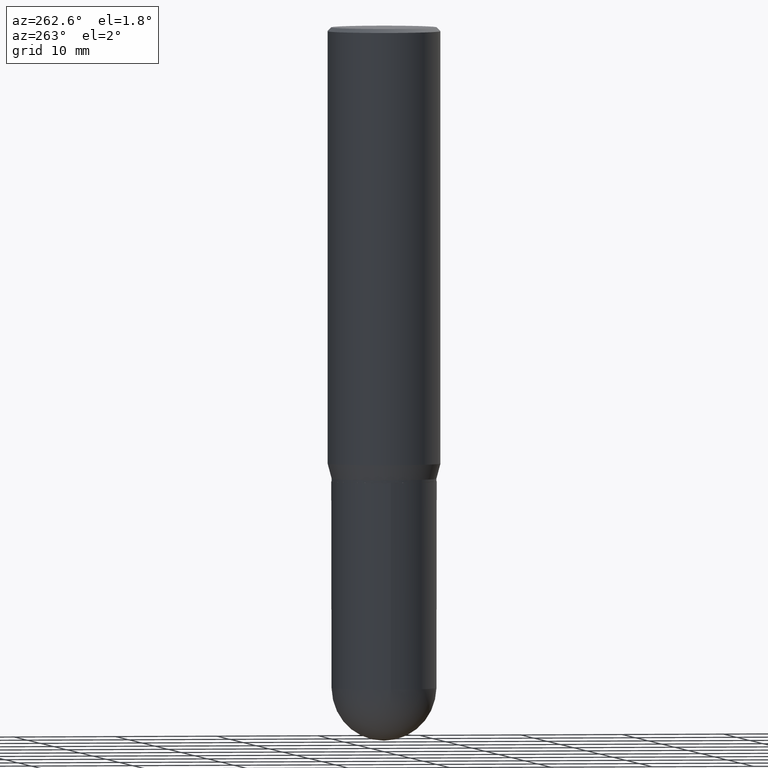
[diagram: clean part render]
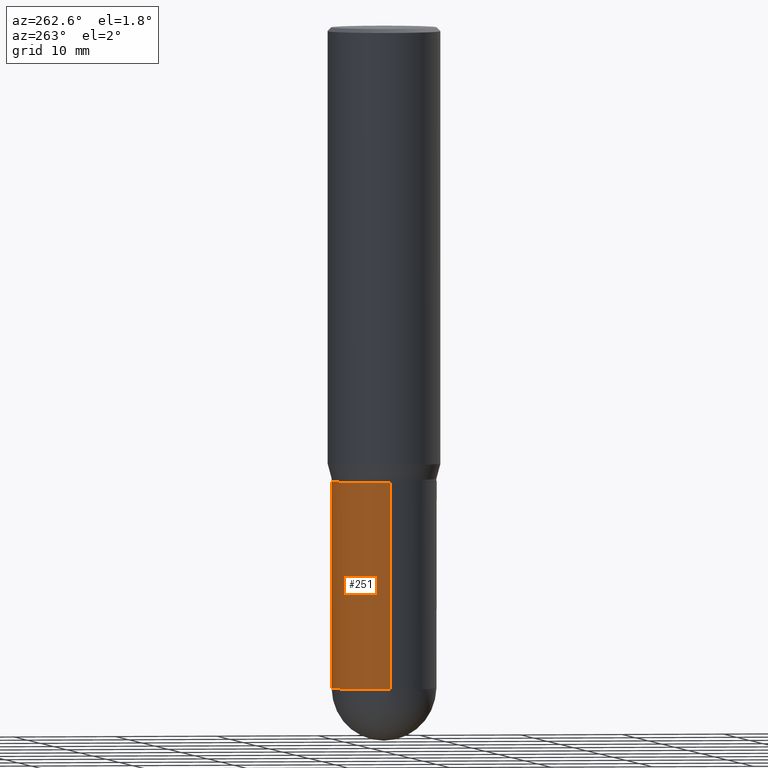
[diagram: same view with one face highlighted and labeled with its STEP entity id]
A machine part, auxiliary view. The second image highlights one B-rep face of the part: STEP entity #251.
In plain terms, the highlighted cylindrical surface (partial cylindrical patch) has radius 5.1587 mm, axis along (-0, 0, 1).
Its self-contained STEP definition (entity closure, byte-faithful):
#9 = ORIENTED_EDGE ( 'NONE', *, *, #167, .F. ) ;
#22 = CARTESIAN_POINT ( 'NONE',  ( 6.228364502472924746E-29, -8.892453821899607499E-15, -2.546899999999999942 ) ) ;
#25 = DIRECTION ( 'NONE',  ( 1.000000000000000000, -6.982962677686262766E-15, 0.000000000000000000 ) ) ;
#49 = VERTEX_POINT ( 'NONE', #236 ) ;
#56 = VERTEX_POINT ( 'NONE', #324 ) ;
#60 = FACE_OUTER_BOUND ( 'NONE', #248, .T. ) ;
#77 = VECTOR ( 'NONE', #223, 39.37007874015748143 ) ;
#78 = VERTEX_POINT ( 'NONE', #162 ) ;
#88 = ORIENTED_EDGE ( 'NONE', *, *, #205, .T. ) ;
#91 = DIRECTION ( 'NONE',  ( -2.445468806185136597E-29, 3.491481338843145583E-15, 1.000000000000000000 ) ) ;
#101 = DIRECTION ( 'NONE',  ( -2.445468806185136597E-29, 3.491481338843145583E-15, 1.000000000000000000 ) ) ;
#111 = CARTESIAN_POINT ( 'NONE',  ( 6.228364502472924746E-29, -8.892453821899607499E-15, -2.546899999999999942 ) ) ;
#120 = ORIENTED_EDGE ( 'NONE', *, *, #225, .F. ) ;
#132 = CARTESIAN_POINT ( 'NONE',  ( 0.2031000000000000583, -8.919512802275635677E-15, -2.546899999999999942 ) ) ;
#150 = CARTESIAN_POINT ( 'NONE',  ( 0.2031000000000000028, -1.418239719838080775E-15, 9.903515031641546145E-30 ) ) ;
#162 = CARTESIAN_POINT ( 'NONE',  ( -0.2031000000000000028, -6.058160786108792588E-15, -1.750000000000000000 ) ) ;
#167 = EDGE_CURVE ( 'NONE', #273, #49, #226, .T. ) ;
#181 = DIRECTION ( 'NONE',  ( 1.000000000000000000, -6.982962677686262766E-15, 0.000000000000000000 ) ) ;
#205 = EDGE_CURVE ( 'NONE', #273, #347, #259, .T. ) ;
#210 = CARTESIAN_POINT ( 'NONE',  ( 4.279570410823988484E-29, -6.110092342975504671E-15, -1.750000000000000000 ) ) ;
#212 = DIRECTION ( 'NONE',  ( 1.000000000000000000, -6.982962677686269866E-15, 0.000000000000000000 ) ) ;
#223 = DIRECTION ( 'NONE',  ( -2.445468806185136877E-29, 3.491481338843145188E-15, 1.000000000000000000 ) ) ;
#225 = EDGE_CURVE ( 'NONE', #49, #78, #320, .T. ) ;
#226 = LINE ( 'NONE', #150, #77 ) ;
#236 = CARTESIAN_POINT ( 'NONE',  ( 0.2031000000000000028, -7.528332062813585446E-15, -1.750000000000000000 ) ) ;
#248 = EDGE_LOOP ( 'NONE', ( #503, #438, #120, #9, #88 ) ) ;
#251 = ADVANCED_FACE ( 'NONE', ( #60 ), #307, .T. ) ;
#259 = CIRCLE ( 'NONE', #431, 0.2031000000000000583 ) ;
#273 = VERTEX_POINT ( 'NONE', #132 ) ;
#301 = CARTESIAN_POINT ( 'NONE',  ( 0.000000000000000000, 0.000000000000000000, 0.000000000000000000 ) ) ;
#307 = CYLINDRICAL_SURFACE ( 'NONE', #373, 0.2031000000000000028 ) ;
#310 = EDGE_CURVE ( 'NONE', #56, #78, #461, .T. ) ;
#311 = DIRECTION ( 'NONE',  ( -2.445468806185136597E-29, 3.491481338843145583E-15, 1.000000000000000000 ) ) ;
#320 = CIRCLE ( 'NONE', #354, 0.2031000000000000028 ) ;
#324 = CARTESIAN_POINT ( 'NONE',  ( -0.2031000000000000583, -6.058160786108791010E-15, -2.546899999999999942 ) ) ;
#332 = EDGE_CURVE ( 'NONE', #347, #56, #397, .T. ) ;
#347 = VERTEX_POINT ( 'NONE', #364 ) ;
#354 = AXIS2_PLACEMENT_3D ( 'NONE', #210, #101, #212 ) ;
#364 = CARTESIAN_POINT ( 'NONE',  ( 1.418239719838142898E-15, 0.2030999999999910932, -2.546900000000000830 ) ) ;
#373 = AXIS2_PLACEMENT_3D ( 'NONE', #301, #91, #375 ) ;
#375 = DIRECTION ( 'NONE',  ( 1.000000000000000000, -6.982962677686266711E-15, 4.876176775795935793E-29 ) ) ;
#397 = CIRCLE ( 'NONE', #425, 0.2031000000000000583 ) ;
#425 = AXIS2_PLACEMENT_3D ( 'NONE', #111, #311, #181 ) ;
#431 = AXIS2_PLACEMENT_3D ( 'NONE', #22, #507, #25 ) ;
#438 = ORIENTED_EDGE ( 'NONE', *, *, #310, .T. ) ;
#461 = LINE ( 'NONE', #502, #509 ) ;
#497 = DIRECTION ( 'NONE',  ( -2.445468806185136877E-29, 3.491481338843145188E-15, 1.000000000000000000 ) ) ;
#502 = CARTESIAN_POINT ( 'NONE',  ( -0.2031000000000000028, 1.443112296328763497E-15, -9.990357168307714203E-30 ) ) ;
#503 = ORIENTED_EDGE ( 'NONE', *, *, #332, .T. ) ;
#507 = DIRECTION ( 'NONE',  ( -2.445468806185136597E-29, 3.491481338843145583E-15, 1.000000000000000000 ) ) ;
#509 = VECTOR ( 'NONE', #497, 39.37007874015748143 ) ;